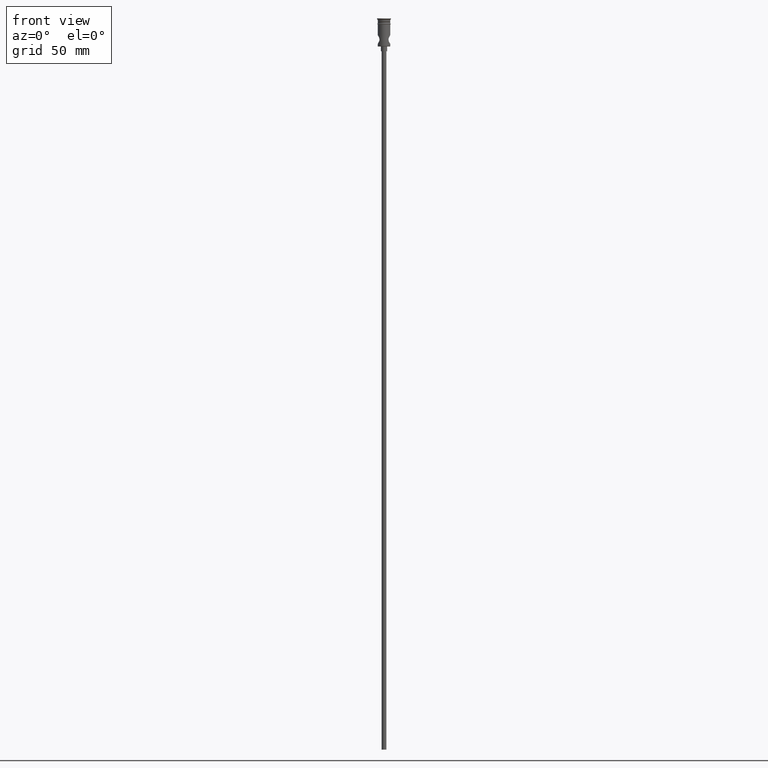
[diagram: clean part render]
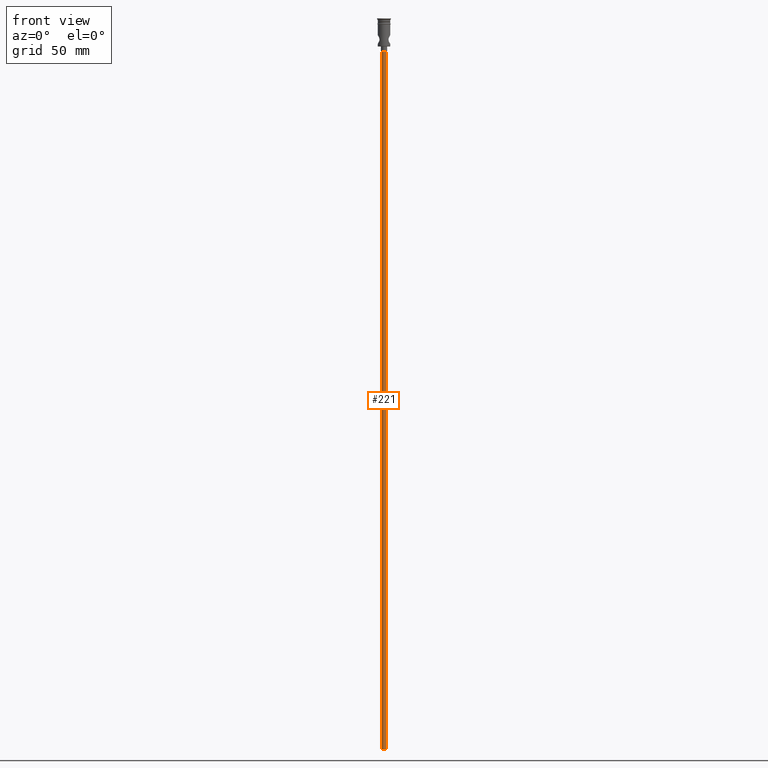
[diagram: same view with one face highlighted and labeled with its STEP entity id]
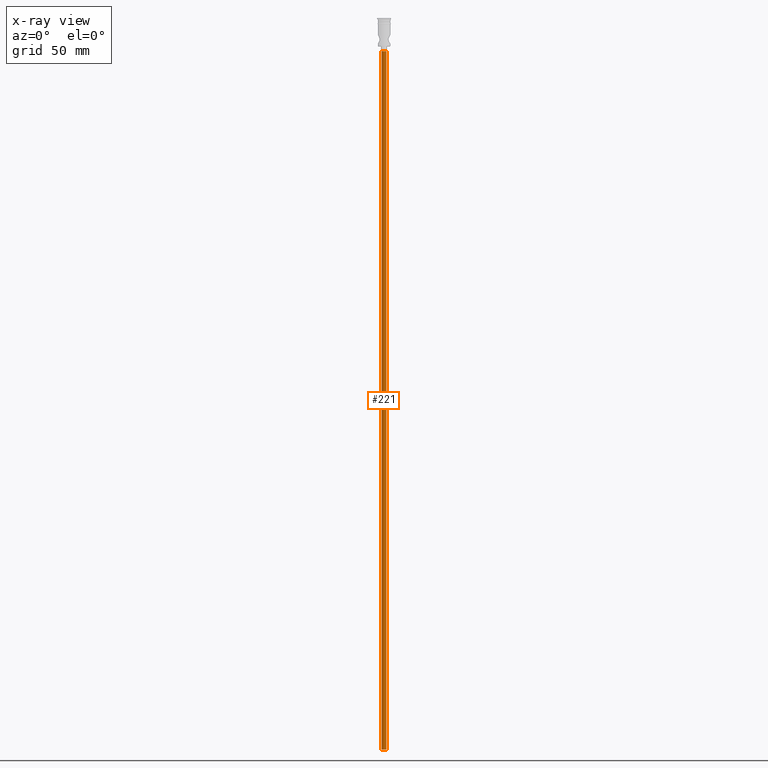
[diagram: x-ray of the same camera — body ghosted, the highlighted face saturated]
A machine part, front view. The second image highlights one B-rep face of the part: STEP entity #221.
The next image is the same camera in x-ray: the body ghosted, the highlighted face saturated — about 0% of this face is hidden behind the body in this view.
In plain terms, the highlighted cylindrical surface (edge-blend (fillet) strip) has radius 1.5 mm, axis along (-0, -0, 1).
Its self-contained STEP definition (entity closure, byte-faithful):
#12 = CIRCLE ( 'NONE', #562, 1.500000000000000222 ) ;
#47 = ORIENTED_EDGE ( 'NONE', *, *, #124, .F. ) ;
#92 = FACE_OUTER_BOUND ( 'NONE', #1060, .T. ) ;
#98 = CIRCLE ( 'NONE', #391, 1.500000000000000222 ) ;
#115 = CARTESIAN_POINT ( 'NONE',  ( 1.500000000000000222, 0.000000000000000000, -20.99999999999999645 ) ) ;
#124 = EDGE_CURVE ( 'NONE', #970, #220, #12, .T. ) ;
#148 = LINE ( 'NONE', #484, #537 ) ;
#154 = DIRECTION ( 'NONE',  ( -1.000000000000000000, 0.000000000000000000, 0.000000000000000000 ) ) ;
#170 = CARTESIAN_POINT ( 'NONE',  ( -1.500000000000000222, 1.836970198721030181E-16, -468.0000000000000000 ) ) ;
#220 = VERTEX_POINT ( 'NONE', #746 ) ;
#221 = ADVANCED_FACE ( 'NONE', ( #92 ), #1313, .T. ) ;
#234 = ORIENTED_EDGE ( 'NONE', *, *, #519, .T. ) ;
#274 = CARTESIAN_POINT ( 'NONE',  ( 0.000000000000000000, 0.000000000000000000, -468.0000000000000000 ) ) ;
#304 = ORIENTED_EDGE ( 'NONE', *, *, #621, .F. ) ;
#349 = DIRECTION ( 'NONE',  ( -0.000000000000000000, -0.000000000000000000, 1.000000000000000000 ) ) ;
#360 = DIRECTION ( 'NONE',  ( -1.000000000000000000, 0.000000000000000000, 0.000000000000000000 ) ) ;
#378 = VERTEX_POINT ( 'NONE', #115 ) ;
#390 = DIRECTION ( 'NONE',  ( -0.000000000000000000, -0.000000000000000000, 1.000000000000000000 ) ) ;
#391 = AXIS2_PLACEMENT_3D ( 'NONE', #687, #1025, #154 ) ;
#405 = LINE ( 'NONE', #170, #932 ) ;
#484 = CARTESIAN_POINT ( 'NONE',  ( 1.500000000000000222, 0.000000000000000000, -468.0000000000000000 ) ) ;
#519 = EDGE_CURVE ( 'NONE', #378, #1405, #98, .T. ) ;
#537 = VECTOR ( 'NONE', #349, 1000.000000000000000 ) ;
#562 = AXIS2_PLACEMENT_3D ( 'NONE', #274, #1355, #360 ) ;
#621 = EDGE_CURVE ( 'NONE', #220, #1405, #405, .T. ) ;
#687 = CARTESIAN_POINT ( 'NONE',  ( 0.000000000000000000, 0.000000000000000000, -20.99999999999999645 ) ) ;
#746 = CARTESIAN_POINT ( 'NONE',  ( -1.500000000000000222, 1.836970198721030181E-16, -468.0000000000000000 ) ) ;
#860 = AXIS2_PLACEMENT_3D ( 'NONE', #1196, #390, #1081 ) ;
#910 = EDGE_CURVE ( 'NONE', #970, #378, #148, .T. ) ;
#932 = VECTOR ( 'NONE', #978, 1000.000000000000000 ) ;
#970 = VERTEX_POINT ( 'NONE', #1077 ) ;
#978 = DIRECTION ( 'NONE',  ( -0.000000000000000000, -0.000000000000000000, 1.000000000000000000 ) ) ;
#1025 = DIRECTION ( 'NONE',  ( 0.000000000000000000, 0.000000000000000000, -1.000000000000000000 ) ) ;
#1060 = EDGE_LOOP ( 'NONE', ( #304, #47, #1253, #234 ) ) ;
#1077 = CARTESIAN_POINT ( 'NONE',  ( 1.500000000000000222, 0.000000000000000000, -468.0000000000000000 ) ) ;
#1081 = DIRECTION ( 'NONE',  ( 1.000000000000000000, 0.000000000000000000, 0.000000000000000000 ) ) ;
#1196 = CARTESIAN_POINT ( 'NONE',  ( 0.000000000000000000, 0.000000000000000000, -468.0000000000000000 ) ) ;
#1253 = ORIENTED_EDGE ( 'NONE', *, *, #910, .T. ) ;
#1287 = CARTESIAN_POINT ( 'NONE',  ( -1.500000000000000222, 1.836970198721030181E-16, -20.99999999999999645 ) ) ;
#1313 = CYLINDRICAL_SURFACE ( 'NONE', #860, 1.500000000000000222 ) ;
#1355 = DIRECTION ( 'NONE',  ( 0.000000000000000000, 0.000000000000000000, -1.000000000000000000 ) ) ;
#1405 = VERTEX_POINT ( 'NONE', #1287 ) ;